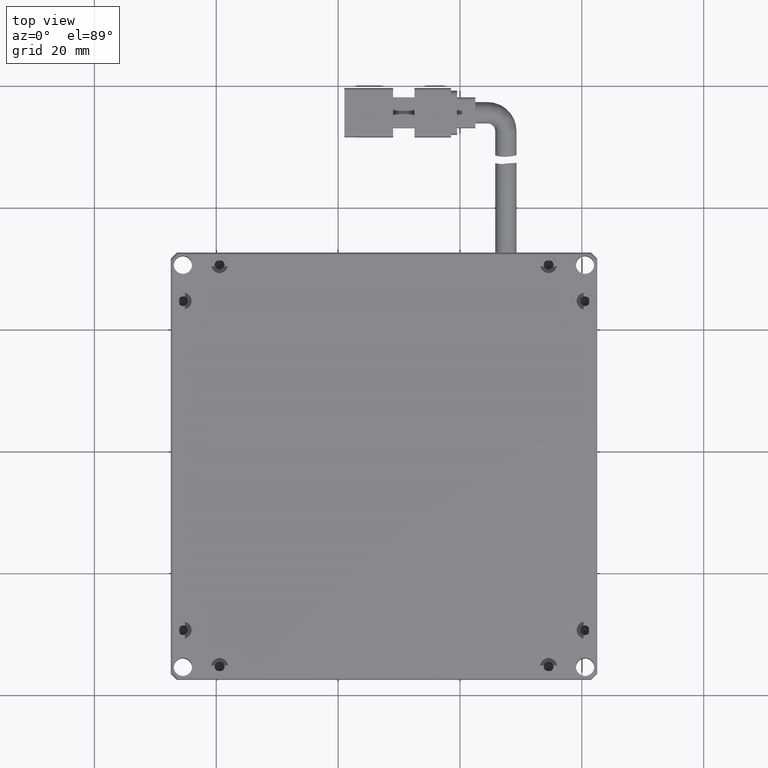
[diagram: clean part render]
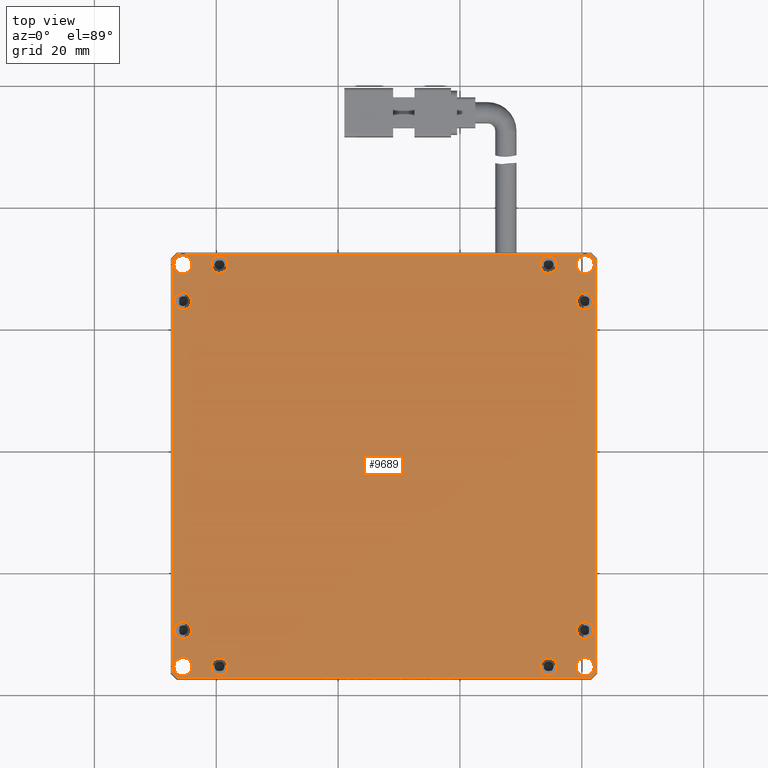
[diagram: same view with one face highlighted and labeled with its STEP entity id]
A machine part, top view. The second image highlights one B-rep face of the part: STEP entity #9689.
In plain terms, the highlighted planar face has unit normal (0, 0, -1).
Its self-contained STEP definition (entity closure, byte-faithful):
#15 = EDGE_LOOP ( 'NONE', ( #8901, #7820 ) ) ;
#56 = EDGE_CURVE ( 'NONE', #10961, #12734, #8176, .T. ) ;
#81 = VECTOR ( 'NONE', #8362, 1000.000000000000000 ) ;
#136 = CIRCLE ( 'NONE', #13226, 1.500000000000001300 ) ;
#235 = VECTOR ( 'NONE', #5824, 1000.000000000000000 ) ;
#284 = ORIENTED_EDGE ( 'NONE', *, *, #5953, .F. ) ;
#401 = CIRCLE ( 'NONE', #8431, 1.500000000000001300 ) ;
#533 = AXIS2_PLACEMENT_3D ( 'NONE', #6256, #16212, #7706 ) ;
#584 = CARTESIAN_POINT ( 'NONE',  ( -39.46630710659901100, 4.535913705583774400, 6.000000000000000000 ) ) ;
#646 = EDGE_LOOP ( 'NONE', ( #11470, #10308 ) ) ;
#793 = AXIS2_PLACEMENT_3D ( 'NONE', #7604, #17554, #9034 ) ;
#933 = EDGE_LOOP ( 'NONE', ( #10126, #7437 ) ) ;
#958 = CARTESIAN_POINT ( 'NONE',  ( -43.96630710659900400, 70.53591370558378100, 6.000000000000000000 ) ) ;
#973 = VERTEX_POINT ( 'NONE', #9045 ) ;
#996 = DIRECTION ( 'NONE',  ( 1.000000000000000000, 0.0000000000000000000, 0.0000000000000000000 ) ) ;
#1054 = CARTESIAN_POINT ( 'NONE',  ( 22.23369289340099200, 3.660177774295656100, 6.000000000000000000 ) ) ;
#1091 = EDGE_CURVE ( 'NONE', #8019, #3581, #16957, .T. ) ;
#1105 = EDGE_CURVE ( 'NONE', #13006, #7448, #5606, .T. ) ;
#1240 = AXIS2_PLACEMENT_3D ( 'NONE', #13187, #13254, #13314 ) ;
#1266 = CARTESIAN_POINT ( 'NONE',  ( -47.16630710659900700, 3.660177774295702200, 6.000000000000000900 ) ) ;
#1270 = EDGE_CURVE ( 'NONE', #12734, #10961, #11224, .T. ) ;
#1378 = EDGE_LOOP ( 'NONE', ( #15653, #14804 ) ) ;
#1503 = AXIS2_PLACEMENT_3D ( 'NONE', #4407, #14440, #5874 ) ;
#1539 = CIRCLE ( 'NONE', #5957, 1.399999999999998600 ) ;
#1568 = CIRCLE ( 'NONE', #5405, 1.399999999999998600 ) ;
#1648 = VECTOR ( 'NONE', #16579, 1000.000000000000100 ) ;
#1703 = EDGE_CURVE ( 'NONE', #17259, #15926, #10028, .T. ) ;
#1733 = ORIENTED_EDGE ( 'NONE', *, *, #9864, .T. ) ;
#1815 = VERTEX_POINT ( 'NONE', #15242 ) ;
#1828 = EDGE_CURVE ( 'NONE', #8793, #3987, #1539, .T. ) ;
#1829 = DIRECTION ( 'NONE',  ( -0.0000000000000000000, -0.0000000000000000000, 1.000000000000000000 ) ) ;
#1939 = EDGE_CURVE ( 'NONE', #10382, #3642, #6433, .T. ) ;
#2001 = ORIENTED_EDGE ( 'NONE', *, *, #18198, .T. ) ;
#2003 = DIRECTION ( 'NONE',  ( 1.000000000000000000, 0.0000000000000000000, 0.0000000000000000000 ) ) ;
#2047 = EDGE_CURVE ( 'NONE', #16589, #1815, #401, .T. ) ;
#2057 = ORIENTED_EDGE ( 'NONE', *, *, #56, .F. ) ;
#2079 = CIRCLE ( 'NONE', #793, 1.500000000000001300 ) ;
#2100 = FACE_BOUND ( 'NONE', #15, .T. ) ;
#2201 = CARTESIAN_POINT ( 'NONE',  ( 19.13369289340098700, 64.53591370558376600, 6.000000000000000000 ) ) ;
#2394 = CARTESIAN_POINT ( 'NONE',  ( -44.06630710659900500, 10.53591370558376600, 6.000000000000000000 ) ) ;
#2417 = AXIS2_PLACEMENT_3D ( 'NONE', #584, #10592, #2003 ) ;
#2437 = EDGE_LOOP ( 'NONE', ( #284, #18046 ) ) ;
#2541 = CARTESIAN_POINT ( 'NONE',  ( -44.06630710659900500, 64.53591370558376600, 6.000000000000000000 ) ) ;
#2547 = FACE_BOUND ( 'NONE', #2437, .T. ) ;
#2738 = CARTESIAN_POINT ( 'NONE',  ( 13.13369289340098000, 4.535913705583767300, 6.000000000000000000 ) ) ;
#2744 = CIRCLE ( 'NONE', #16169, 1.399999999999991500 ) ;
#2861 = CARTESIAN_POINT ( 'NONE',  ( -47.46630710659900400, 72.53591370558378100, 6.000000000000000000 ) ) ;
#2898 = ORIENTED_EDGE ( 'NONE', *, *, #4106, .T. ) ;
#3011 = FACE_BOUND ( 'NONE', #933, .T. ) ;
#3028 = DIRECTION ( 'NONE',  ( -0.0000000000000000000, -0.0000000000000000000, 1.000000000000000000 ) ) ;
#3110 = ORIENTED_EDGE ( 'NONE', *, *, #16559, .T. ) ;
#3198 = ORIENTED_EDGE ( 'NONE', *, *, #5398, .T. ) ;
#3200 = CIRCLE ( 'NONE', #14319, 1.500000000000001300 ) ;
#3380 = ORIENTED_EDGE ( 'NONE', *, *, #1270, .F. ) ;
#3462 = FACE_BOUND ( 'NONE', #8757, .T. ) ;
#3516 = AXIS2_PLACEMENT_3D ( 'NONE', #12191, #12234, #12297 ) ;
#3581 = VERTEX_POINT ( 'NONE', #12576 ) ;
#3642 = VERTEX_POINT ( 'NONE', #16188 ) ;
#3653 = CIRCLE ( 'NONE', #11513, 1.500000000000001300 ) ;
#3734 = EDGE_CURVE ( 'NONE', #3987, #8793, #14581, .T. ) ;
#3987 = VERTEX_POINT ( 'NONE', #17909 ) ;
#4047 = CARTESIAN_POINT ( 'NONE',  ( 21.40942882468909000, 2.835913705583777800, 5.999999999999998200 ) ) ;
#4106 = EDGE_CURVE ( 'NONE', #10552, #6321, #15197, .T. ) ;
#4176 = PLANE ( 'NONE',  #4986 ) ;
#4214 = DIRECTION ( 'NONE',  ( 0.0000000000000000000, 0.0000000000000000000, -1.000000000000000000 ) ) ;
#4230 = EDGE_CURVE ( 'NONE', #12628, #10074, #1568, .T. ) ;
#4306 = DIRECTION ( 'NONE',  ( -1.000000000000000000, 0.0000000000000000000, -0.0000000000000000000 ) ) ;
#4382 = AXIS2_PLACEMENT_3D ( 'NONE', #11117, #11171, #11318 ) ;
#4407 = CARTESIAN_POINT ( 'NONE',  ( 20.53369289340100000, 70.53591370558378100, 6.000000000000000000 ) ) ;
#4540 = ORIENTED_EDGE ( 'NONE', *, *, #7088, .T. ) ;
#4558 = CARTESIAN_POINT ( 'NONE',  ( -46.34204303788708000, 72.23591370558376900, 6.000000000000000000 ) ) ;
#4669 = VERTEX_POINT ( 'NONE', #15069 ) ;
#4699 = ORIENTED_EDGE ( 'NONE', *, *, #5938, .T. ) ;
#4986 = AXIS2_PLACEMENT_3D ( 'NONE', #2861, #12907, #4306 ) ;
#5054 = CARTESIAN_POINT ( 'NONE',  ( -45.46630710659900400, 70.53591370558378100, 6.000000000000000000 ) ) ;
#5104 = VERTEX_POINT ( 'NONE', #17340 ) ;
#5106 = VERTEX_POINT ( 'NONE', #8812 ) ;
#5125 = CARTESIAN_POINT ( 'NONE',  ( -40.86630710659901000, 70.53591370558378100, 6.000000000000000000 ) ) ;
#5126 = ORIENTED_EDGE ( 'NONE', *, *, #8302, .F. ) ;
#5196 = EDGE_LOOP ( 'NONE', ( #17624, #15629 ) ) ;
#5206 = DIRECTION ( 'NONE',  ( 1.000000000000000000, -0.0000000000000000000, 0.0000000000000000000 ) ) ;
#5243 = AXIS2_PLACEMENT_3D ( 'NONE', #15134, #6586, #16547 ) ;
#5385 = CARTESIAN_POINT ( 'NONE',  ( 19.03369289340099600, 4.535913705583767300, 6.000000000000000000 ) ) ;
#5398 = EDGE_CURVE ( 'NONE', #12350, #8715, #11250, .T. ) ;
#5405 = AXIS2_PLACEMENT_3D ( 'NONE', #7729, #17684, #9144 ) ;
#5606 = CIRCLE ( 'NONE', #18203, 1.399999999999998600 ) ;
#5623 = CARTESIAN_POINT ( 'NONE',  ( 21.93369289340099800, 10.53591370558377300, 6.000000000000000000 ) ) ;
#5628 = VERTEX_POINT ( 'NONE', #1266 ) ;
#5724 = DIRECTION ( 'NONE',  ( -0.0000000000000000000, -0.0000000000000000000, 1.000000000000000000 ) ) ;
#5824 = DIRECTION ( 'NONE',  ( 0.0000000000000000000, 1.000000000000000000, 0.0000000000000000000 ) ) ;
#5874 = DIRECTION ( 'NONE',  ( 1.000000000000000000, 0.0000000000000000000, 0.0000000000000000000 ) ) ;
#5915 = ORIENTED_EDGE ( 'NONE', *, *, #1939, .T. ) ;
#5921 = VECTOR ( 'NONE', #18239, 1000.000000000000100 ) ;
#5938 = EDGE_CURVE ( 'NONE', #17410, #10105, #15392, .T. ) ;
#5942 = FACE_BOUND ( 'NONE', #646, .T. ) ;
#5953 = EDGE_CURVE ( 'NONE', #5104, #12528, #7792, .T. ) ;
#5957 = AXIS2_PLACEMENT_3D ( 'NONE', #16763, #16824, #16885 ) ;
#6015 = CIRCLE ( 'NONE', #16483, 1.399999999999998600 ) ;
#6018 = CARTESIAN_POINT ( 'NONE',  ( 14.53369289340098500, 70.53591370558378100, 6.000000000000000000 ) ) ;
#6107 = ORIENTED_EDGE ( 'NONE', *, *, #18086, .T. ) ;
#6256 = CARTESIAN_POINT ( 'NONE',  ( -45.46630710659900400, 70.53591370558378100, 6.000000000000000000 ) ) ;
#6321 = VERTEX_POINT ( 'NONE', #4558 ) ;
#6355 = FACE_BOUND ( 'NONE', #17026, .T. ) ;
#6433 = LINE ( 'NONE', #6571, #17374 ) ;
#6450 = AXIS2_PLACEMENT_3D ( 'NONE', #14486, #14246, #14192 ) ;
#6493 = DIRECTION ( 'NONE',  ( 1.000000000000000000, 0.0000000000000000000, 0.0000000000000000000 ) ) ;
#6508 = DIRECTION ( 'NONE',  ( 0.0000000000000000000, 0.0000000000000000000, -1.000000000000000000 ) ) ;
#6571 = CARTESIAN_POINT ( 'NONE',  ( -47.46630710659900400, 2.835913705583774600, 6.000000000000000000 ) ) ;
#6586 = DIRECTION ( 'NONE',  ( -0.0000000000000000000, -0.0000000000000000000, 1.000000000000000000 ) ) ;
#6660 = ORIENTED_EDGE ( 'NONE', *, *, #4230, .F. ) ;
#6695 = DIRECTION ( 'NONE',  ( 0.7071067811865415800, -0.7071067811865535700, 0.0000000000000000000 ) ) ;
#6747 = EDGE_LOOP ( 'NONE', ( #14996, #14067 ) ) ;
#6802 = FACE_BOUND ( 'NONE', #14609, .T. ) ;
#6940 = AXIS2_PLACEMENT_3D ( 'NONE', #11644, #3028, #13051 ) ;
#7088 = EDGE_CURVE ( 'NONE', #3642, #12350, #9679, .T. ) ;
#7211 = EDGE_CURVE ( 'NONE', #1815, #16589, #3653, .T. ) ;
#7275 = EDGE_CURVE ( 'NONE', #8210, #973, #10826, .T. ) ;
#7294 = CIRCLE ( 'NONE', #7795, 1.399999999999991500 ) ;
#7370 = DIRECTION ( 'NONE',  ( 0.0000000000000000000, 0.0000000000000000000, -1.000000000000000000 ) ) ;
#7412 = CARTESIAN_POINT ( 'NONE',  ( -43.96630710659900400, 4.535913705583773500, 6.000000000000000000 ) ) ;
#7422 = EDGE_LOOP ( 'NONE', ( #13004, #12267 ) ) ;
#7435 = DIRECTION ( 'NONE',  ( 1.000000000000000000, 0.0000000000000000000, 0.0000000000000000000 ) ) ;
#7437 = ORIENTED_EDGE ( 'NONE', *, *, #16812, .T. ) ;
#7448 = VERTEX_POINT ( 'NONE', #11939 ) ;
#7498 = VECTOR ( 'NONE', #6695, 999.9999999999998900 ) ;
#7517 = CARTESIAN_POINT ( 'NONE',  ( 14.53369289340098500, 70.53591370558378100, 6.000000000000000000 ) ) ;
#7531 = CARTESIAN_POINT ( 'NONE',  ( -47.16630710659900700, 72.53591370558378100, 6.000000000000000000 ) ) ;
#7604 = CARTESIAN_POINT ( 'NONE',  ( -45.46630710659900400, 4.535913705583773500, 6.000000000000000000 ) ) ;
#7639 = AXIS2_PLACEMENT_3D ( 'NONE', #18081, #9537, #996 ) ;
#7690 = CARTESIAN_POINT ( 'NONE',  ( 15.93369289340097700, 4.535913705583767300, 6.000000000000000000 ) ) ;
#7706 = DIRECTION ( 'NONE',  ( 1.000000000000000000, 0.0000000000000000000, 0.0000000000000000000 ) ) ;
#7729 = CARTESIAN_POINT ( 'NONE',  ( 20.53369289340098500, 64.53591370558376600, 6.000000000000000000 ) ) ;
#7792 = CIRCLE ( 'NONE', #2417, 1.399999999999998600 ) ;
#7795 = AXIS2_PLACEMENT_3D ( 'NONE', #7517, #17493, #8953 ) ;
#7807 = CIRCLE ( 'NONE', #11861, 1.399999999999998600 ) ;
#7820 = ORIENTED_EDGE ( 'NONE', *, *, #18159, .F. ) ;
#8019 = VERTEX_POINT ( 'NONE', #5125 ) ;
#8116 = CIRCLE ( 'NONE', #11860, 1.500000000000001300 ) ;
#8176 = CIRCLE ( 'NONE', #3516, 1.399999999999998600 ) ;
#8210 = VERTEX_POINT ( 'NONE', #11180 ) ;
#8302 = EDGE_CURVE ( 'NONE', #10074, #12628, #7807, .T. ) ;
#8362 = DIRECTION ( 'NONE',  ( -0.7071067811865486800, -0.7071067811865464600, -1.116118104538605900E-015 ) ) ;
#8431 = AXIS2_PLACEMENT_3D ( 'NONE', #10580, #10455, #10407 ) ;
#8681 = DIRECTION ( 'NONE',  ( -1.000000000000000000, -0.0000000000000000000, -0.0000000000000000000 ) ) ;
#8715 = VERTEX_POINT ( 'NONE', #10761 ) ;
#8757 = EDGE_LOOP ( 'NONE', ( #6107, #4699 ) ) ;
#8792 = CIRCLE ( 'NONE', #7639, 1.399999999999998600 ) ;
#8793 = VERTEX_POINT ( 'NONE', #2394 ) ;
#8812 = CARTESIAN_POINT ( 'NONE',  ( -47.16630710659900700, 71.41164963687185700, 6.000000000000000000 ) ) ;
#8901 = ORIENTED_EDGE ( 'NONE', *, *, #1703, .F. ) ;
#8953 = DIRECTION ( 'NONE',  ( 1.000000000000000000, 0.0000000000000000000, 0.0000000000000000000 ) ) ;
#8968 = DIRECTION ( 'NONE',  ( -0.0000000000000000000, -1.000000000000000000, -0.0000000000000000000 ) ) ;
#9034 = DIRECTION ( 'NONE',  ( 1.000000000000000000, 0.0000000000000000000, 0.0000000000000000000 ) ) ;
#9045 = CARTESIAN_POINT ( 'NONE',  ( 19.03369289340099600, 70.53591370558378100, 6.000000000000000000 ) ) ;
#9144 = DIRECTION ( 'NONE',  ( 1.000000000000000000, 0.0000000000000000000, 0.0000000000000000000 ) ) ;
#9537 = DIRECTION ( 'NONE',  ( -0.0000000000000000000, -0.0000000000000000000, 1.000000000000000000 ) ) ;
#9676 = EDGE_LOOP ( 'NONE', ( #3110, #2898, #2001, #1733, #18140, #5915, #4540, #3198 ) ) ;
#9679 = LINE ( 'NONE', #4047, #5921 ) ;
#9689 = ADVANCED_FACE ( 'NONE', ( #10180, #6802, #3011, #3462, #6355, #2547, #17288, #13544, #9710, #5942, #2100, #16820, #13102 ), #4176, .F. ) ;
#9710 = FACE_BOUND ( 'NONE', #7422, .T. ) ;
#9864 = EDGE_CURVE ( 'NONE', #5106, #5628, #17271, .T. ) ;
#9880 = EDGE_CURVE ( 'NONE', #17418, #11490, #2079, .T. ) ;
#9898 = CARTESIAN_POINT ( 'NONE',  ( -47.46630710659900400, 72.23591370558376900, 6.000000000000000000 ) ) ;
#9992 = CARTESIAN_POINT ( 'NONE',  ( -46.96630710659900400, 4.535913705583773500, 6.000000000000000000 ) ) ;
#10028 = CIRCLE ( 'NONE', #4382, 1.399999999999998600 ) ;
#10074 = VERTEX_POINT ( 'NONE', #2201 ) ;
#10089 = EDGE_CURVE ( 'NONE', #7448, #13006, #14838, .T. ) ;
#10105 = VERTEX_POINT ( 'NONE', #958 ) ;
#10126 = ORIENTED_EDGE ( 'NONE', *, *, #9880, .T. ) ;
#10161 = VECTOR ( 'NONE', #8968, 1000.000000000000000 ) ;
#10167 = CARTESIAN_POINT ( 'NONE',  ( -46.34204303788708000, 2.835913705583774600, 6.000000000000001800 ) ) ;
#10180 = FACE_BOUND ( 'NONE', #1378, .T. ) ;
#10308 = ORIENTED_EDGE ( 'NONE', *, *, #10089, .F. ) ;
#10382 = VERTEX_POINT ( 'NONE', #10167 ) ;
#10407 = DIRECTION ( 'NONE',  ( 1.000000000000000000, 0.0000000000000000000, 0.0000000000000000000 ) ) ;
#10416 = CARTESIAN_POINT ( 'NONE',  ( -39.46630710659901100, 4.535913705583774400, 6.000000000000000000 ) ) ;
#10455 = DIRECTION ( 'NONE',  ( 0.0000000000000000000, 0.0000000000000000000, -1.000000000000000000 ) ) ;
#10534 = CARTESIAN_POINT ( 'NONE',  ( 21.40942882468909000, 72.23591370558376900, 5.999999999999999100 ) ) ;
#10552 = VERTEX_POINT ( 'NONE', #10534 ) ;
#10580 = CARTESIAN_POINT ( 'NONE',  ( 20.53369289340100000, 4.535913705583767300, 6.000000000000000000 ) ) ;
#10592 = DIRECTION ( 'NONE',  ( -0.0000000000000000000, -0.0000000000000000000, 1.000000000000000000 ) ) ;
#10605 = EDGE_LOOP ( 'NONE', ( #6660, #5126 ) ) ;
#10761 = CARTESIAN_POINT ( 'NONE',  ( 22.23369289340100600, 71.41164963687184300, 6.000000000000000000 ) ) ;
#10826 = CIRCLE ( 'NONE', #1503, 1.500000000000001300 ) ;
#10961 = VERTEX_POINT ( 'NONE', #2738 ) ;
#11013 = VECTOR ( 'NONE', #8681, 1000.000000000000000 ) ;
#11053 = CARTESIAN_POINT ( 'NONE',  ( 13.13369289340099400, 70.53591370558378100, 6.000000000000000000 ) ) ;
#11117 = CARTESIAN_POINT ( 'NONE',  ( 20.53369289340100000, 10.53591370558377300, 6.000000000000000000 ) ) ;
#11171 = DIRECTION ( 'NONE',  ( -0.0000000000000000000, -0.0000000000000000000, 1.000000000000000000 ) ) ;
#11180 = CARTESIAN_POINT ( 'NONE',  ( 22.03369289340100000, 70.53591370558378100, 6.000000000000000000 ) ) ;
#11224 = CIRCLE ( 'NONE', #1240, 1.399999999999998600 ) ;
#11250 = LINE ( 'NONE', #14390, #235 ) ;
#11318 = DIRECTION ( 'NONE',  ( 1.000000000000000000, 0.0000000000000000000, 0.0000000000000000000 ) ) ;
#11470 = ORIENTED_EDGE ( 'NONE', *, *, #1105, .F. ) ;
#11490 = VERTEX_POINT ( 'NONE', #9992 ) ;
#11513 = AXIS2_PLACEMENT_3D ( 'NONE', #12824, #4214, #14250 ) ;
#11544 = LINE ( 'NONE', #15431, #81 ) ;
#11644 = CARTESIAN_POINT ( 'NONE',  ( -39.46630710659901100, 70.53591370558378100, 6.000000000000000000 ) ) ;
#11860 = AXIS2_PLACEMENT_3D ( 'NONE', #5054, #15061, #6493 ) ;
#11861 = AXIS2_PLACEMENT_3D ( 'NONE', #14270, #5724, #15657 ) ;
#11865 = DIRECTION ( 'NONE',  ( 1.000000000000000000, 0.0000000000000000000, 0.0000000000000000000 ) ) ;
#11939 = CARTESIAN_POINT ( 'NONE',  ( -46.86630710659900200, 64.53591370558376600, 6.000000000000000000 ) ) ;
#12191 = CARTESIAN_POINT ( 'NONE',  ( 14.53369289340097800, 4.535913705583767300, 6.000000000000000000 ) ) ;
#12234 = DIRECTION ( 'NONE',  ( -0.0000000000000000000, -0.0000000000000000000, 1.000000000000000000 ) ) ;
#12254 = VERTEX_POINT ( 'NONE', #11053 ) ;
#12267 = ORIENTED_EDGE ( 'NONE', *, *, #3734, .F. ) ;
#12297 = DIRECTION ( 'NONE',  ( 1.000000000000000000, 0.0000000000000000000, 0.0000000000000000000 ) ) ;
#12350 = VERTEX_POINT ( 'NONE', #1054 ) ;
#12361 = ORIENTED_EDGE ( 'NONE', *, *, #2047, .T. ) ;
#12528 = VERTEX_POINT ( 'NONE', #15729 ) ;
#12576 = CARTESIAN_POINT ( 'NONE',  ( -38.06630710659901200, 70.53591370558378100, 6.000000000000000000 ) ) ;
#12628 = VERTEX_POINT ( 'NONE', #17222 ) ;
#12734 = VERTEX_POINT ( 'NONE', #7690 ) ;
#12824 = CARTESIAN_POINT ( 'NONE',  ( 20.53369289340100000, 4.535913705583767300, 6.000000000000000000 ) ) ;
#12907 = DIRECTION ( 'NONE',  ( 0.0000000000000000000, 0.0000000000000000000, -1.000000000000000000 ) ) ;
#12969 = CARTESIAN_POINT ( 'NONE',  ( -39.46630710659901100, 70.53591370558378100, 6.000000000000000000 ) ) ;
#13004 = ORIENTED_EDGE ( 'NONE', *, *, #1828, .F. ) ;
#13006 = VERTEX_POINT ( 'NONE', #2541 ) ;
#13051 = DIRECTION ( 'NONE',  ( 1.000000000000000000, 0.0000000000000000000, 0.0000000000000000000 ) ) ;
#13095 = LINE ( 'NONE', #18012, #1648 ) ;
#13102 = FACE_OUTER_BOUND ( 'NONE', #9676, .T. ) ;
#13146 = DIRECTION ( 'NONE',  ( -0.0000000000000000000, -0.0000000000000000000, 1.000000000000000000 ) ) ;
#13187 = CARTESIAN_POINT ( 'NONE',  ( 14.53369289340097800, 4.535913705583767300, 6.000000000000000000 ) ) ;
#13226 = AXIS2_PLACEMENT_3D ( 'NONE', #15075, #6508, #16468 ) ;
#13254 = DIRECTION ( 'NONE',  ( -0.0000000000000000000, -0.0000000000000000000, 1.000000000000000000 ) ) ;
#13314 = DIRECTION ( 'NONE',  ( 1.000000000000000000, 0.0000000000000000000, 0.0000000000000000000 ) ) ;
#13544 = FACE_BOUND ( 'NONE', #6747, .T. ) ;
#13693 = ORIENTED_EDGE ( 'NONE', *, *, #7211, .T. ) ;
#14067 = ORIENTED_EDGE ( 'NONE', *, *, #15914, .F. ) ;
#14192 = DIRECTION ( 'NONE',  ( 1.000000000000000000, 0.0000000000000000000, 0.0000000000000000000 ) ) ;
#14246 = DIRECTION ( 'NONE',  ( -0.0000000000000000000, -0.0000000000000000000, 1.000000000000000000 ) ) ;
#14250 = DIRECTION ( 'NONE',  ( 1.000000000000000000, 0.0000000000000000000, 0.0000000000000000000 ) ) ;
#14270 = CARTESIAN_POINT ( 'NONE',  ( 20.53369289340098500, 64.53591370558376600, 6.000000000000000000 ) ) ;
#14319 = AXIS2_PLACEMENT_3D ( 'NONE', #15901, #7370, #17332 ) ;
#14390 = CARTESIAN_POINT ( 'NONE',  ( 22.23369289340099200, 72.53591370558378100, 6.000000000000000000 ) ) ;
#14408 = DIRECTION ( 'NONE',  ( 1.000000000000000000, 0.0000000000000000000, 0.0000000000000000000 ) ) ;
#14440 = DIRECTION ( 'NONE',  ( 0.0000000000000000000, 0.0000000000000000000, -1.000000000000000000 ) ) ;
#14486 = CARTESIAN_POINT ( 'NONE',  ( -45.46630710659900400, 10.53591370558376600, 6.000000000000000000 ) ) ;
#14581 = CIRCLE ( 'NONE', #6450, 1.399999999999998600 ) ;
#14609 = EDGE_LOOP ( 'NONE', ( #13693, #12361 ) ) ;
#14804 = ORIENTED_EDGE ( 'NONE', *, *, #16037, .T. ) ;
#14838 = CIRCLE ( 'NONE', #5243, 1.399999999999998600 ) ;
#14996 = ORIENTED_EDGE ( 'NONE', *, *, #16863, .F. ) ;
#15061 = DIRECTION ( 'NONE',  ( 0.0000000000000000000, 0.0000000000000000000, -1.000000000000000000 ) ) ;
#15069 = CARTESIAN_POINT ( 'NONE',  ( 15.93369289340097700, 70.53591370558378100, 6.000000000000000000 ) ) ;
#15075 = CARTESIAN_POINT ( 'NONE',  ( 20.53369289340100000, 70.53591370558378100, 6.000000000000000000 ) ) ;
#15134 = CARTESIAN_POINT ( 'NONE',  ( -45.46630710659900400, 64.53591370558376600, 6.000000000000000000 ) ) ;
#15197 = LINE ( 'NONE', #9898, #11013 ) ;
#15242 = CARTESIAN_POINT ( 'NONE',  ( 22.03369289340100000, 4.535913705583767300, 6.000000000000000000 ) ) ;
#15345 = EDGE_CURVE ( 'NONE', #3581, #8019, #15802, .T. ) ;
#15392 = CIRCLE ( 'NONE', #533, 1.500000000000001300 ) ;
#15431 = CARTESIAN_POINT ( 'NONE',  ( -46.34204303788708000, 72.23591370558376900, 5.999999999999999100 ) ) ;
#15445 = EDGE_CURVE ( 'NONE', #12528, #5104, #6015, .T. ) ;
#15533 = LINE ( 'NONE', #16647, #7498 ) ;
#15629 = ORIENTED_EDGE ( 'NONE', *, *, #1091, .F. ) ;
#15653 = ORIENTED_EDGE ( 'NONE', *, *, #7275, .T. ) ;
#15657 = DIRECTION ( 'NONE',  ( 1.000000000000000000, 0.0000000000000000000, 0.0000000000000000000 ) ) ;
#15729 = CARTESIAN_POINT ( 'NONE',  ( -40.86630710659901000, 4.535913705583774400, 6.000000000000000000 ) ) ;
#15802 = CIRCLE ( 'NONE', #6940, 1.399999999999998600 ) ;
#15901 = CARTESIAN_POINT ( 'NONE',  ( -45.46630710659900400, 4.535913705583773500, 6.000000000000000000 ) ) ;
#15914 = EDGE_CURVE ( 'NONE', #12254, #4669, #7294, .T. ) ;
#15926 = VERTEX_POINT ( 'NONE', #15984 ) ;
#15957 = DIRECTION ( 'NONE',  ( -0.0000000000000000000, -0.0000000000000000000, 1.000000000000000000 ) ) ;
#15984 = CARTESIAN_POINT ( 'NONE',  ( 19.13369289340100100, 10.53591370558377300, 6.000000000000000000 ) ) ;
#15987 = CARTESIAN_POINT ( 'NONE',  ( -46.96630710659900400, 70.53591370558378100, 6.000000000000000000 ) ) ;
#16037 = EDGE_CURVE ( 'NONE', #973, #8210, #136, .T. ) ;
#16166 = EDGE_CURVE ( 'NONE', #5628, #10382, #15533, .T. ) ;
#16169 = AXIS2_PLACEMENT_3D ( 'NONE', #6018, #15957, #7435 ) ;
#16188 = CARTESIAN_POINT ( 'NONE',  ( 21.40942882468910100, 2.835913705583774600, 5.999999999999999100 ) ) ;
#16198 = CARTESIAN_POINT ( 'NONE',  ( -45.46630710659900400, 64.53591370558376600, 6.000000000000000000 ) ) ;
#16212 = DIRECTION ( 'NONE',  ( 0.0000000000000000000, 0.0000000000000000000, -1.000000000000000000 ) ) ;
#16259 = DIRECTION ( 'NONE',  ( 1.000000000000000000, 0.0000000000000000000, 0.0000000000000000000 ) ) ;
#16283 = AXIS2_PLACEMENT_3D ( 'NONE', #12969, #13146, #14408 ) ;
#16468 = DIRECTION ( 'NONE',  ( 1.000000000000000000, 0.0000000000000000000, 0.0000000000000000000 ) ) ;
#16483 = AXIS2_PLACEMENT_3D ( 'NONE', #10416, #1829, #11865 ) ;
#16547 = DIRECTION ( 'NONE',  ( 1.000000000000000000, 0.0000000000000000000, 0.0000000000000000000 ) ) ;
#16559 = EDGE_CURVE ( 'NONE', #8715, #10552, #13095, .T. ) ;
#16579 = DIRECTION ( 'NONE',  ( -0.7071067811865474600, 0.7071067811865474600, -2.976314945436286200E-015 ) ) ;
#16589 = VERTEX_POINT ( 'NONE', #5385 ) ;
#16647 = CARTESIAN_POINT ( 'NONE',  ( -47.16630710659900700, 3.660177774295704900, 6.000000000000005300 ) ) ;
#16763 = CARTESIAN_POINT ( 'NONE',  ( -45.46630710659900400, 10.53591370558376600, 6.000000000000000000 ) ) ;
#16812 = EDGE_CURVE ( 'NONE', #11490, #17418, #3200, .T. ) ;
#16820 = FACE_BOUND ( 'NONE', #10605, .T. ) ;
#16824 = DIRECTION ( 'NONE',  ( -0.0000000000000000000, -0.0000000000000000000, 1.000000000000000000 ) ) ;
#16863 = EDGE_CURVE ( 'NONE', #4669, #12254, #2744, .T. ) ;
#16885 = DIRECTION ( 'NONE',  ( 1.000000000000000000, 0.0000000000000000000, 0.0000000000000000000 ) ) ;
#16957 = CIRCLE ( 'NONE', #16283, 1.399999999999998600 ) ;
#17026 = EDGE_LOOP ( 'NONE', ( #3380, #2057 ) ) ;
#17219 = DIRECTION ( 'NONE',  ( -0.0000000000000000000, -0.0000000000000000000, 1.000000000000000000 ) ) ;
#17222 = CARTESIAN_POINT ( 'NONE',  ( 21.93369289340098400, 64.53591370558376600, 6.000000000000000000 ) ) ;
#17259 = VERTEX_POINT ( 'NONE', #5623 ) ;
#17271 = LINE ( 'NONE', #7531, #10161 ) ;
#17288 = FACE_BOUND ( 'NONE', #5196, .T. ) ;
#17332 = DIRECTION ( 'NONE',  ( 1.000000000000000000, 0.0000000000000000000, 0.0000000000000000000 ) ) ;
#17340 = CARTESIAN_POINT ( 'NONE',  ( -38.06630710659901200, 4.535913705583774400, 6.000000000000000000 ) ) ;
#17374 = VECTOR ( 'NONE', #5206, 1000.000000000000000 ) ;
#17410 = VERTEX_POINT ( 'NONE', #15987 ) ;
#17418 = VERTEX_POINT ( 'NONE', #7412 ) ;
#17493 = DIRECTION ( 'NONE',  ( -0.0000000000000000000, -0.0000000000000000000, 1.000000000000000000 ) ) ;
#17554 = DIRECTION ( 'NONE',  ( 0.0000000000000000000, 0.0000000000000000000, -1.000000000000000000 ) ) ;
#17624 = ORIENTED_EDGE ( 'NONE', *, *, #15345, .F. ) ;
#17684 = DIRECTION ( 'NONE',  ( -0.0000000000000000000, -0.0000000000000000000, 1.000000000000000000 ) ) ;
#17909 = CARTESIAN_POINT ( 'NONE',  ( -46.86630710659900200, 10.53591370558376600, 6.000000000000000000 ) ) ;
#18012 = CARTESIAN_POINT ( 'NONE',  ( 22.23369289340100600, 71.41164963687184300, 6.000000000000001800 ) ) ;
#18046 = ORIENTED_EDGE ( 'NONE', *, *, #15445, .F. ) ;
#18081 = CARTESIAN_POINT ( 'NONE',  ( 20.53369289340100000, 10.53591370558377300, 6.000000000000000000 ) ) ;
#18086 = EDGE_CURVE ( 'NONE', #10105, #17410, #8116, .T. ) ;
#18140 = ORIENTED_EDGE ( 'NONE', *, *, #16166, .T. ) ;
#18159 = EDGE_CURVE ( 'NONE', #15926, #17259, #8792, .T. ) ;
#18198 = EDGE_CURVE ( 'NONE', #6321, #5106, #11544, .T. ) ;
#18203 = AXIS2_PLACEMENT_3D ( 'NONE', #16198, #17219, #16259 ) ;
#18239 = DIRECTION ( 'NONE',  ( 0.7071067811865517900, 0.7071067811865431300, 7.440787363590887000E-016 ) ) ;